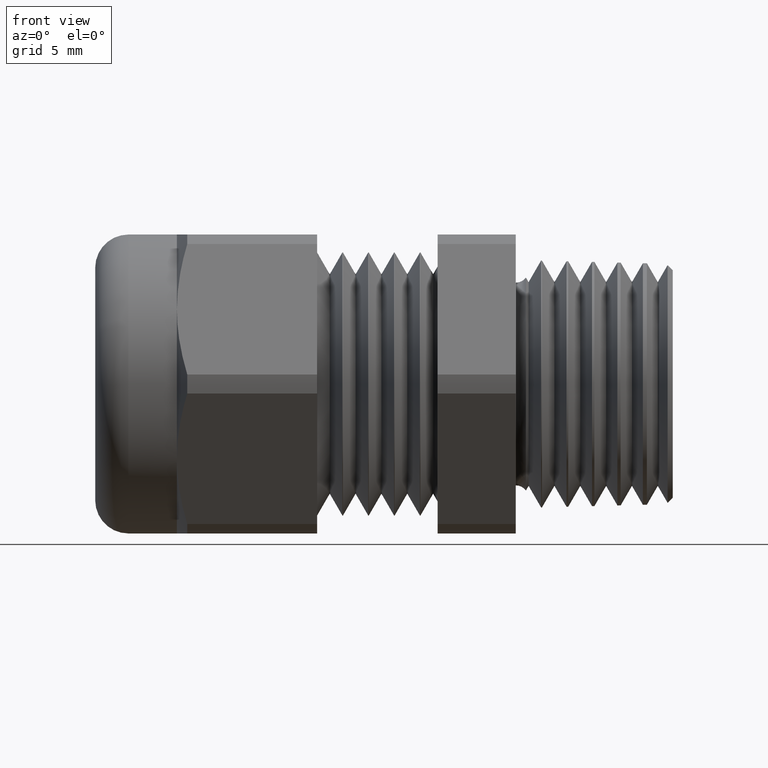
[diagram: clean part render]
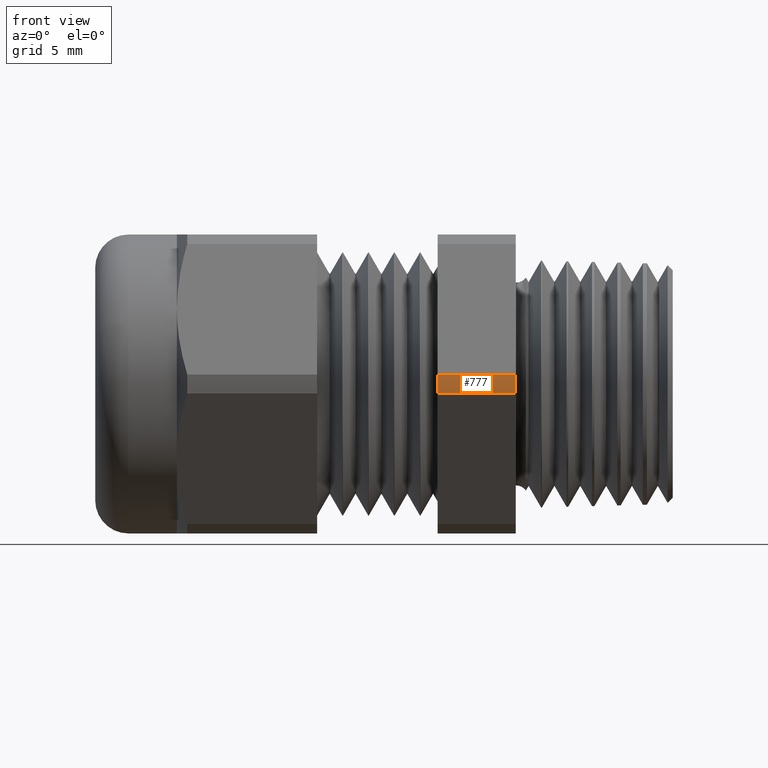
[diagram: same view with one face highlighted and labeled with its STEP entity id]
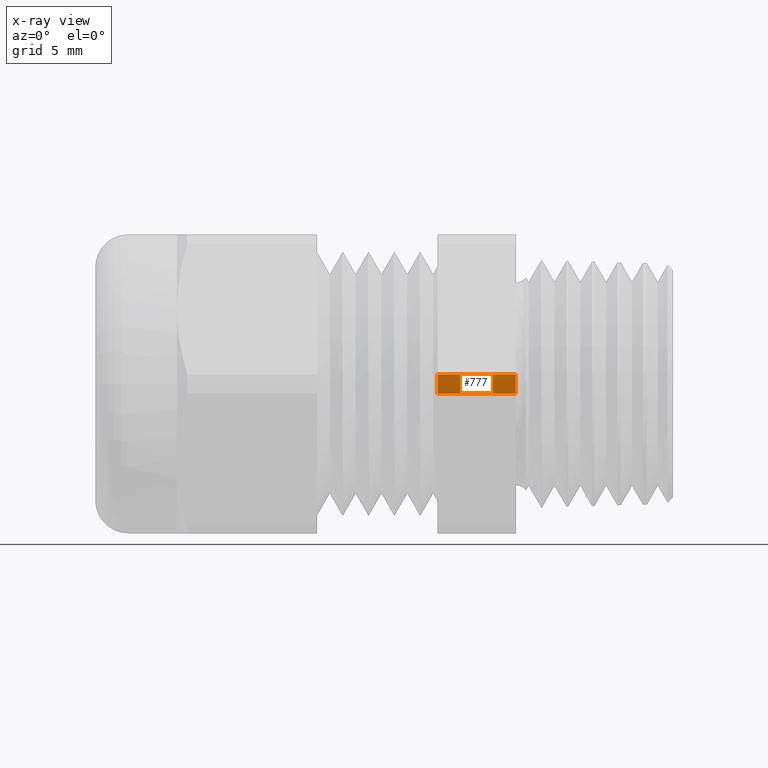
[diagram: x-ray of the same camera — body ghosted, the highlighted face saturated]
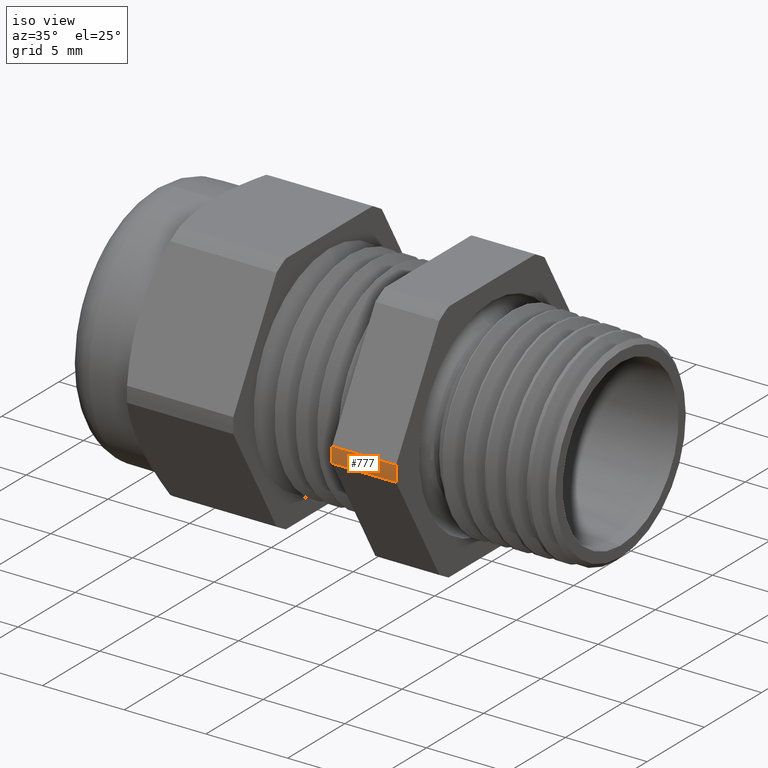
[diagram: same view with one face highlighted and labeled with its STEP entity id]
A machine part, front view. The second image highlights one B-rep face of the part: STEP entity #777.
The next image is the same camera in x-ray: the body ghosted, the highlighted face saturated — about 0% of this face is hidden behind the body in this view.
A second angle (iso view) of the same face is appended — the face is thin or edge-on in the first view.
In plain terms, the highlighted cylindrical surface (partial cylindrical patch) has radius 8.3922 mm, axis along (-1, 0, 0).
Its self-contained STEP definition (entity closure, byte-faithful):
#454 = VERTEX_POINT ( 'NONE', #2103 ) ;
#482 = EDGE_CURVE ( 'NONE', #454, #507, #2177, .T. ) ;
#507 = VERTEX_POINT ( 'NONE', #2191 ) ;
#777 = ADVANCED_FACE ( 'NONE', ( #2742 ), #2734, .T. ) ;
#778 = EDGE_LOOP ( 'NONE', ( #779, #837, #838, #840 ) ) ;
#779 = ORIENTED_EDGE ( 'NONE', *, *, #780, .T. ) ;
#780 = EDGE_CURVE ( 'NONE', #802, #454, #2735, .T. ) ;
#802 = VERTEX_POINT ( 'NONE', #2752 ) ;
#806 = EDGE_CURVE ( 'NONE', #802, #807, #2524, .T. ) ;
#807 = VERTEX_POINT ( 'NONE', #2810 ) ;
#837 = ORIENTED_EDGE ( 'NONE', *, *, #482, .T. ) ;
#838 = ORIENTED_EDGE ( 'NONE', *, *, #839, .F. ) ;
#839 = EDGE_CURVE ( 'NONE', #807, #507, #2817, .T. ) ;
#840 = ORIENTED_EDGE ( 'NONE', *, *, #806, .F. ) ;
#2103 = CARTESIAN_POINT ( 'NONE',  ( 0.0000000000000000000, -0.3298736633726285800, -0.01864205495973449800 ) ) ;
#2173 = DIRECTION ( 'NONE',  ( 0.0000000000000000000, 0.0000000000000000000, 1.000000000000000000 ) ) ;
#2174 = DIRECTION ( 'NONE',  ( -1.000000000000000000, 0.0000000000000000000, 0.0000000000000000000 ) ) ;
#2175 = CARTESIAN_POINT ( 'NONE',  ( 0.0000000000000000000, 0.0000000000000000000, 0.0000000000000000000 ) ) ;
#2176 = AXIS2_PLACEMENT_3D ( 'NONE', #2175, #2174, #2173 ) ;
#2177 = CIRCLE ( 'NONE', #2176, 0.3304000000000000300 ) ;
#2191 = CARTESIAN_POINT ( 'NONE',  ( 0.0000000000000000000, -0.3298736633726285800, 0.01864205495973465100 ) ) ;
#2522 = CARTESIAN_POINT ( 'NONE',  ( -0.1542288557213930500, 0.0000000000000000000, 0.0000000000000000000 ) ) ;
#2523 = AXIS2_PLACEMENT_3D ( 'NONE', #2522, #2749, #2811 ) ;
#2524 = CIRCLE ( 'NONE', #2523, 0.3304000000000000300 ) ;
#2728 = DIRECTION ( 'NONE',  ( 1.000000000000000000, 0.0000000000000000000, 0.0000000000000000000 ) ) ;
#2729 = VECTOR ( 'NONE', #2728, 39.37007874015748100 ) ;
#2730 = CARTESIAN_POINT ( 'NONE',  ( -1.612607445236302800, -0.3298736633726285800, -0.01864205495973451600 ) ) ;
#2731 = DIRECTION ( 'NONE',  ( 0.0000000000000000000, 0.0000000000000000000, 1.000000000000000000 ) ) ;
#2732 = DIRECTION ( 'NONE',  ( -1.000000000000000000, 0.0000000000000000000, 0.0000000000000000000 ) ) ;
#2733 = AXIS2_PLACEMENT_3D ( 'NONE', #2736, #2732, #2731 ) ;
#2734 = CYLINDRICAL_SURFACE ( 'NONE', #2733, 0.3304000000000000300 ) ;
#2735 = LINE ( 'NONE', #2730, #2729 ) ;
#2736 = CARTESIAN_POINT ( 'NONE',  ( -0.7238591030180623300, 0.0000000000000000000, 0.0000000000000000000 ) ) ;
#2742 = FACE_OUTER_BOUND ( 'NONE', #778, .T. ) ;
#2749 = DIRECTION ( 'NONE',  ( -1.000000000000000000, 0.0000000000000000000, 0.0000000000000000000 ) ) ;
#2752 = CARTESIAN_POINT ( 'NONE',  ( -0.1542288557213930500, -0.3298736633726285800, -0.01864205495973451600 ) ) ;
#2810 = CARTESIAN_POINT ( 'NONE',  ( -0.1542288557213930500, -0.3298736633726285800, 0.01864205495973465100 ) ) ;
#2811 = DIRECTION ( 'NONE',  ( 0.0000000000000000000, 0.0000000000000000000, 1.000000000000000000 ) ) ;
#2814 = DIRECTION ( 'NONE',  ( 1.000000000000000000, 0.0000000000000000000, 0.0000000000000000000 ) ) ;
#2815 = VECTOR ( 'NONE', #2814, 39.37007874015748100 ) ;
#2816 = CARTESIAN_POINT ( 'NONE',  ( -1.612607445236302800, -0.3298736633726285800, 0.01864205495973465100 ) ) ;
#2817 = LINE ( 'NONE', #2816, #2815 ) ;